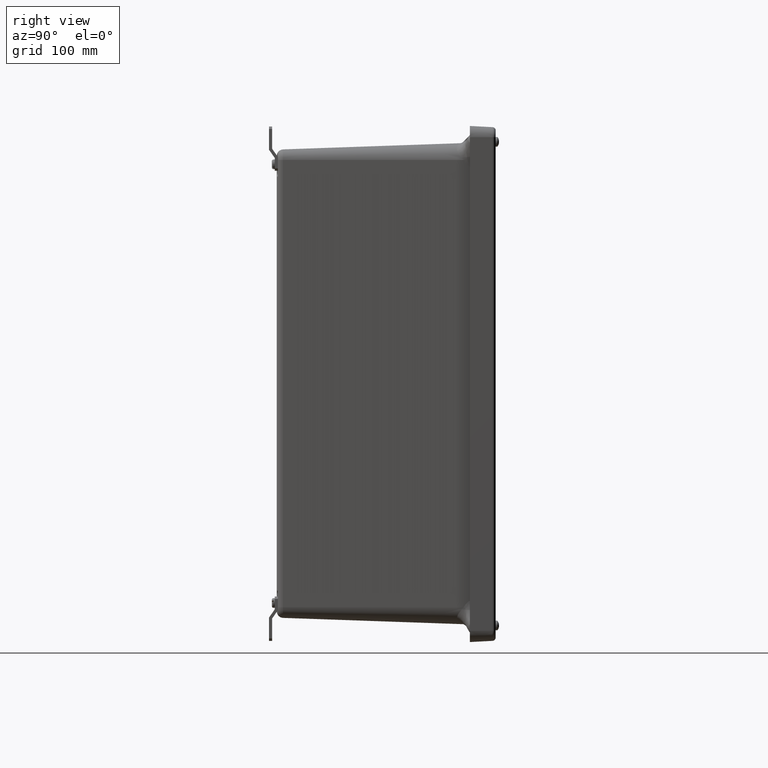
[diagram: clean part render]
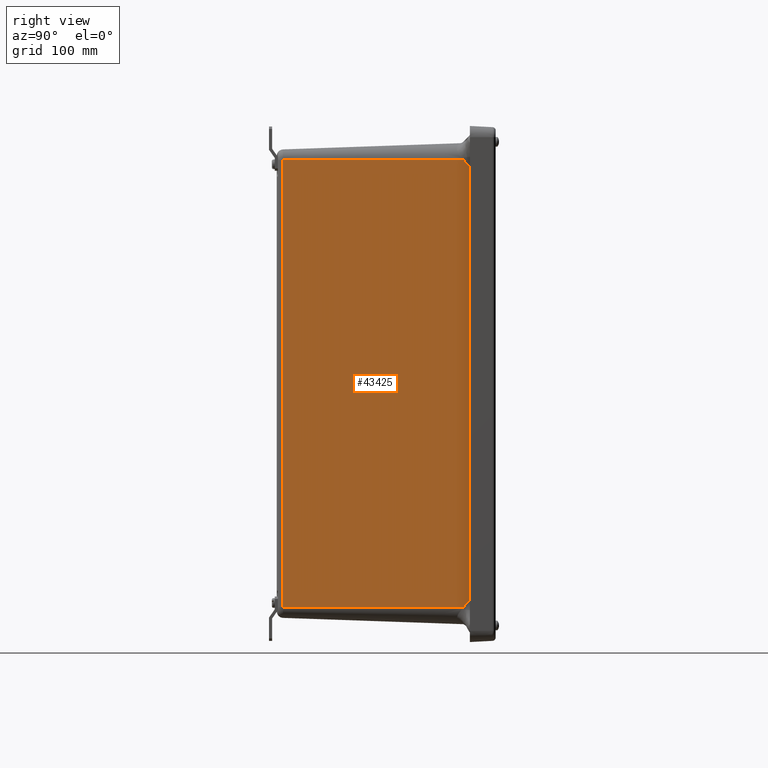
[diagram: same view with one face highlighted and labeled with its STEP entity id]
A machine part, right view. The second image highlights one B-rep face of the part: STEP entity #43425.
In plain terms, the highlighted planar face has unit normal (0.9994, -0.0349, -0).
Its self-contained STEP definition (entity closure, byte-faithful):
#240 = LINE ( 'NONE', #45856, #28679 ) ;
#373 = EDGE_CURVE ( 'NONE', #28251, #20834, #44925, .T. ) ;
#1477 = ORIENTED_EDGE ( 'NONE', *, *, #23505, .T. ) ;
#1515 = CARTESIAN_POINT ( 'NONE',  ( 8.335032160580819700, -0.4850410047886938900, 8.665074867310753600 ) ) ;
#1801 = VERTEX_POINT ( 'NONE', #27840 ) ;
#1808 = CARTESIAN_POINT ( 'NONE',  ( 8.328177936008934500, -0.6813203156871939800, -8.428079366173228900 ) ) ;
#2660 = CARTESIAN_POINT ( 'NONE',  ( 8.320898890088194800, -0.8897649183314867400, 8.665074867310753600 ) ) ;
#3673 = LINE ( 'NONE', #48154, #13490 ) ;
#4355 = LINE ( 'NONE', #42799, #33956 ) ;
#4442 = EDGE_LOOP ( 'NONE', ( #6929, #38624, #14885, #31811, #33824, #6670, #40225, #1477 ) ) ;
#4703 = LINE ( 'NONE', #5179, #24459 ) ;
#5179 = CARTESIAN_POINT ( 'NONE',  ( 8.352211883994359100, 0.006921906211834959500, 8.665074867310753600 ) ) ;
#5208 = VERTEX_POINT ( 'NONE', #33621 ) ;
#5541 = CARTESIAN_POINT ( 'NONE',  ( 8.329414961190506600, -0.6458965492703084800, -8.405165527836143000 ) ) ;
#6526 = VECTOR ( 'NONE', #34935, 39.37007874015748100 ) ;
#6670 = ORIENTED_EDGE ( 'NONE', *, *, #373, .T. ) ;
#6929 = ORIENTED_EDGE ( 'NONE', *, *, #16222, .F. ) ;
#6995 = CARTESIAN_POINT ( 'NONE',  ( 8.328667302486659100, -0.6673066932829018200, 8.418629970810908200 ) ) ;
#7155 = VERTEX_POINT ( 'NONE', #32638 ) ;
#8632 = VERTEX_POINT ( 'NONE', #8728 ) ;
#8728 = CARTESIAN_POINT ( 'NONE',  ( 8.320898890088193100, -0.8897649183314904100, -8.665153532689254600 ) ) ;
#9075 = CARTESIAN_POINT ( 'NONE',  ( 8.320898890088193100, -0.8897649183314904100, -8.665153532689254600 ) ) ;
#9224 = CARTESIAN_POINT ( 'NONE',  ( 8.330045590334492500, -0.6278376933755374100, -8.394212216355107600 ) ) ;
#10149 = CARTESIAN_POINT ( 'NONE',  ( 8.335032160580819700, -0.4850410047886938900, 8.381658566386006400 ) ) ;
#10688 = CARTESIAN_POINT ( 'NONE',  ( 8.327221803158913400, -0.7087003781524827700, 8.447741526014947800 ) ) ;
#11057 = DIRECTION ( 'NONE',  ( -6.314221642584680500E-017, 0.0000000000000000000, -1.000000000000000000 ) ) ;
#11242 = AXIS2_PLACEMENT_3D ( 'NONE', #14202, #44136, #21857 ) ;
#11533 = FACE_OUTER_BOUND ( 'NONE', #4442, .T. ) ;
#12687 = EDGE_CURVE ( 'NONE', #8632, #1801, #27875, .T. ) ;
#12953 = CARTESIAN_POINT ( 'NONE',  ( 8.330427060700449400, -0.6169138113560870300, -8.387768780705418000 ) ) ;
#13275 = EDGE_CURVE ( 'NONE', #28302, #8632, #240, .T. ) ;
#13490 = VECTOR ( 'NONE', #11057, 39.37007874015748100 ) ;
#14202 = CARTESIAN_POINT ( 'NONE',  ( 8.352211883994359100, 0.006921906211834959500, 8.665074867310753600 ) ) ;
#14433 = CARTESIAN_POINT ( 'NONE',  ( 8.325852190283233900, -0.7479209593600335500, 8.480007196090273400 ) ) ;
#14885 = ORIENTED_EDGE ( 'NONE', *, *, #13275, .T. ) ;
#16222 = EDGE_CURVE ( 'NONE', #5208, #37258, #4703, .T. ) ;
#16549 = CARTESIAN_POINT ( 'NONE',  ( 8.323353069130456900, -0.8194864256756488900, -8.550993525953426700 ) ) ;
#16707 = CARTESIAN_POINT ( 'NONE',  ( 8.330682201135267900, -0.6096075452418772100, -8.383539043962622700 ) ) ;
#16761 = DIRECTION ( 'NONE',  ( -0.03489585077468929800, -0.9992864213068273200, 0.01445433466142351600 ) ) ;
#18164 = CARTESIAN_POINT ( 'NONE',  ( 8.323352974593367600, -0.8194891328636522100, 8.550918733276862600 ) ) ;
#20108 = LINE ( 'NONE', #46518, #26505 ) ;
#20266 = CARTESIAN_POINT ( 'NONE',  ( 8.325852409306380200, -0.7479146873577098300, -8.480080222300463400 ) ) ;
#20480 = DIRECTION ( 'NONE',  ( 0.03489585077468929800, 0.9992864213068273200, 0.01445433466142353800 ) ) ;
#20834 = VERTEX_POINT ( 'NONE', #10149 ) ;
#21857 = DIRECTION ( 'NONE',  ( 0.03489949670250104600, 0.9993908270190957600, 0.0000000000000000000 ) ) ;
#21928 = CARTESIAN_POINT ( 'NONE',  ( 8.320898890088194800, -0.8897649183314867400, 8.665074867310753600 ) ) ;
#23505 = EDGE_CURVE ( 'NONE', #7155, #37258, #45452, .T. ) ;
#24050 = CARTESIAN_POINT ( 'NONE',  ( 8.327222085924736600, -0.7086922807988208500, -8.447814042478716700 ) ) ;
#24459 = VECTOR ( 'NONE', #27408, 39.37007874015748900 ) ;
#25499 = CARTESIAN_POINT ( 'NONE',  ( 8.330682201135269700, -0.6096075452418792100, 8.383460378584128800 ) ) ;
#26505 = VECTOR ( 'NONE', #20480, 39.37007874015748900 ) ;
#27408 = DIRECTION ( 'NONE',  ( 0.03489949670250104600, 0.9993908270190957600, 0.0000000000000000000 ) ) ;
#27609 = EDGE_CURVE ( 'NONE', #5208, #28302, #3673, .T. ) ;
#27756 = CARTESIAN_POINT ( 'NONE',  ( 8.328667651192386500, -0.6672967076573592700, -8.418702068853418700 ) ) ;
#27840 = CARTESIAN_POINT ( 'NONE',  ( 8.330682201135267900, -0.6096075452418772100, -8.383539043962622700 ) ) ;
#27875 = B_SPLINE_CURVE_WITH_KNOTS ( 'NONE', 3,
 ( #9075, #31343, #16549, #42574, #20266, #46313, #24050, #1808, #27756, #5541, #31513, #9224, #35234, #12953, #38967, #16707 ),
 .UNSPECIFIED., .F., .F.,
 ( 4, 2, 2, 2, 2, 2, 2, 4 ),
 ( 0.0000000000000000000, 0.005076675750559038600, 0.006345844688198833600, 0.007615013625838629500, 0.008884182563478424500, 0.009518767032298345400, 0.009836059266708286800, 0.01015335150111823000 ),
 .UNSPECIFIED. ) ;
#28251 = VERTEX_POINT ( 'NONE', #42919 ) ;
#28302 = VERTEX_POINT ( 'NONE', #47716 ) ;
#28679 = VECTOR ( 'NONE', #34787, 39.37007874015748900 ) ;
#29248 = CARTESIAN_POINT ( 'NONE',  ( 8.329663672117918700, -0.6387744001587178900, 8.400581539223905400 ) ) ;
#31343 = CARTESIAN_POINT ( 'NONE',  ( 8.322021924437654800, -0.8576054222549867000, -8.605741700616668800 ) ) ;
#31513 = CARTESIAN_POINT ( 'NONE',  ( 8.329666181233573500, -0.6387025484873061200, -8.400741325620188600 ) ) ;
#31811 = ORIENTED_EDGE ( 'NONE', *, *, #12687, .T. ) ;
#32638 = CARTESIAN_POINT ( 'NONE',  ( 8.330682201135269700, -0.6096075452418792100, 8.383460378584128800 ) ) ;
#32979 = CARTESIAN_POINT ( 'NONE',  ( 8.328177609397451800, -0.6813296686164025400, 8.428007133406616400 ) ) ;
#33621 = CARTESIAN_POINT ( 'NONE',  ( 8.076520716892218800, -7.887840182787636300, 8.665074867310753600 ) ) ;
#33824 = ORIENTED_EDGE ( 'NONE', *, *, #37231, .T. ) ;
#33956 = VECTOR ( 'NONE', #16761, 39.37007874015748900 ) ;
#34787 = DIRECTION ( 'NONE',  ( 0.03489949670250104600, 0.9993908270190957600, -2.203631573942447500E-018 ) ) ;
#34935 = DIRECTION ( 'NONE',  ( 6.314221642584680500E-017, -0.0000000000000000000, 1.000000000000000000 ) ) ;
#35234 = CARTESIAN_POINT ( 'NONE',  ( 8.330172490446678100, -0.6242037496213813700, -8.392053736071387600 ) ) ;
#36723 = CARTESIAN_POINT ( 'NONE',  ( 8.326755763627801300, -0.7220460042053501400, 8.458101815866120500 ) ) ;
#37231 = EDGE_CURVE ( 'NONE', #1801, #28251, #20108, .T. ) ;
#37258 = VERTEX_POINT ( 'NONE', #2660 ) ;
#38624 = ORIENTED_EDGE ( 'NONE', *, *, #27609, .T. ) ;
#38628 = EDGE_CURVE ( 'NONE', #20834, #7155, #4355, .T. ) ;
#38967 = CARTESIAN_POINT ( 'NONE',  ( 8.330556294965356700, -0.6132130262132984300, -8.385618238909051700 ) ) ;
#40225 = ORIENTED_EDGE ( 'NONE', *, *, #38628, .T. ) ;
#40374 = PLANE ( 'NONE',  #11242 ) ;
#40455 = CARTESIAN_POINT ( 'NONE',  ( 8.325418017207896400, -0.7603540495140630500, 8.491475989907726800 ) ) ;
#42574 = CARTESIAN_POINT ( 'NONE',  ( 8.325418213003034800, -0.7603484426748053900, -8.491549307210261700 ) ) ;
#42799 = CARTESIAN_POINT ( 'NONE',  ( 8.352065340537629700, 0.002725450667997769900, 8.374603192237556100 ) ) ;
#42919 = CARTESIAN_POINT ( 'NONE',  ( 8.335032160580818000, -0.4850410047886938900, -8.381737231764500300 ) ) ;
#43425 = ADVANCED_FACE ( 'NONE', ( #11533 ), #40374, .T. ) ;
#44136 = DIRECTION ( 'NONE',  ( 0.9993908270190957600, -0.03489949670250104600, -6.310375189364578200E-017 ) ) ;
#44219 = CARTESIAN_POINT ( 'NONE',  ( 8.322021884661815200, -0.8576065612859795600, 8.605665139497455500 ) ) ;
#44925 = LINE ( 'NONE', #1515, #6526 ) ;
#45452 = B_SPLINE_CURVE_WITH_KNOTS ( 'NONE', 3,
 ( #25499, #47770, #29248, #6995, #32979, #10688, #36723, #14433, #40455, #18164, #44219, #21928 ),
 .UNSPECIFIED., .F., .F.,
 ( 4, 2, 2, 2, 2, 4 ),
 ( -2.764299527341087100E-005, 0.001258208896058108800, 0.002544060787389628200, 0.003829912678721147400, 0.005115764570052667500, 0.01025917213537860500 ),
 .UNSPECIFIED. ) ;
#45856 = CARTESIAN_POINT ( 'NONE',  ( 8.352211883994357300, 0.006921906211834959500, -8.665153532689254600 ) ) ;
#46313 = CARTESIAN_POINT ( 'NONE',  ( 8.326756024668140900, -0.7220385289879436300, -8.458174482381302500 ) ) ;
#46518 = CARTESIAN_POINT ( 'NONE',  ( 8.360806643714196800, 0.2530436224549360600, -8.371061091287499400 ) ) ;
#47716 = CARTESIAN_POINT ( 'NONE',  ( 8.076520716892217100, -7.887840182787636300, -8.665153532689254600 ) ) ;
#47770 = CARTESIAN_POINT ( 'NONE',  ( 8.330171956417540700, -0.6242190422150488700, 8.391886480677305500 ) ) ;
#48154 = CARTESIAN_POINT ( 'NONE',  ( 8.076520716892218800, -7.887840182787637200, 8.665074867310753600 ) ) ;